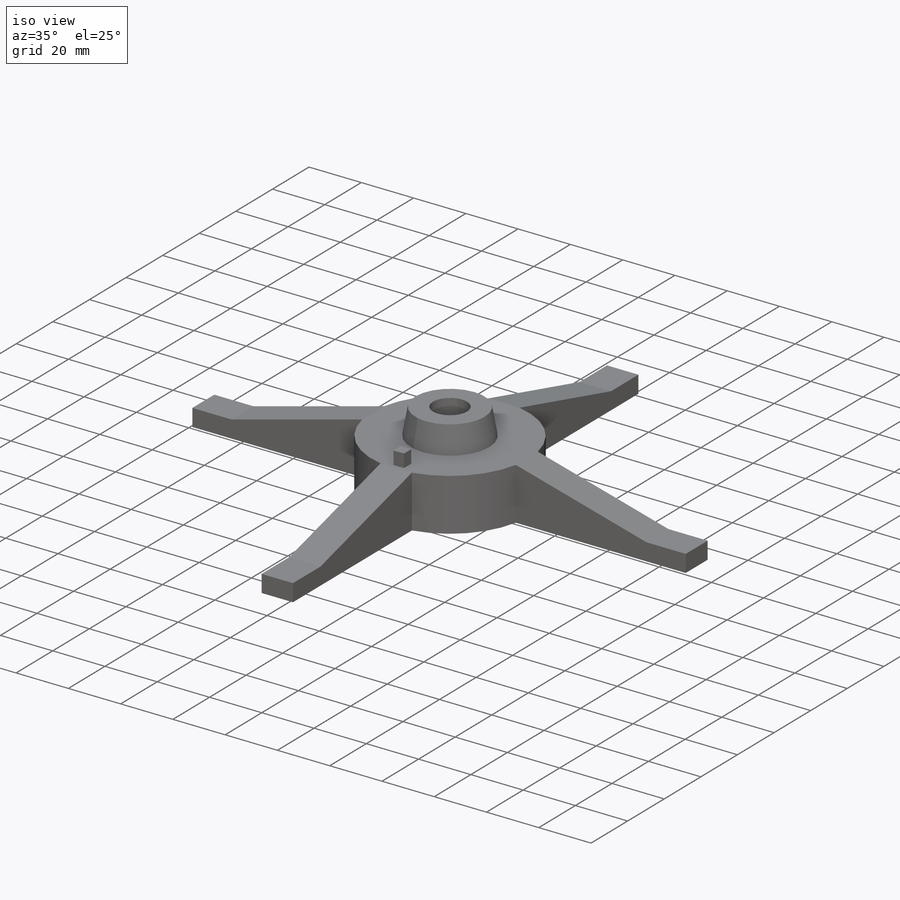
[diagram: iso view]
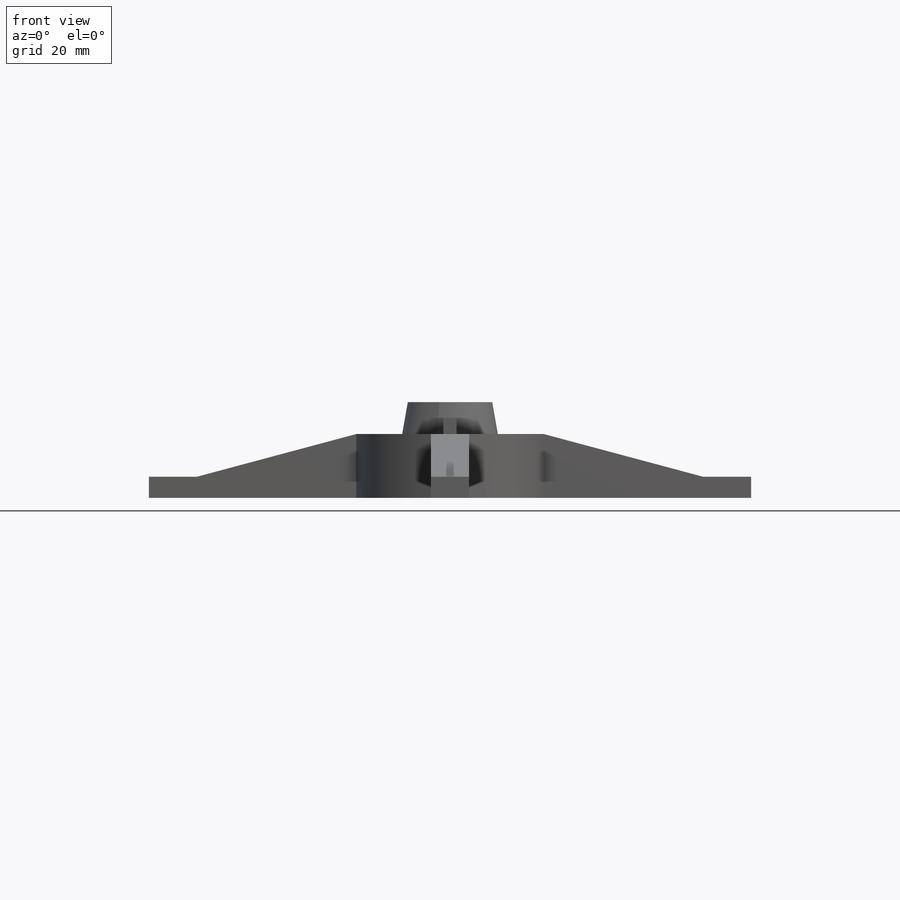
[diagram: front view]
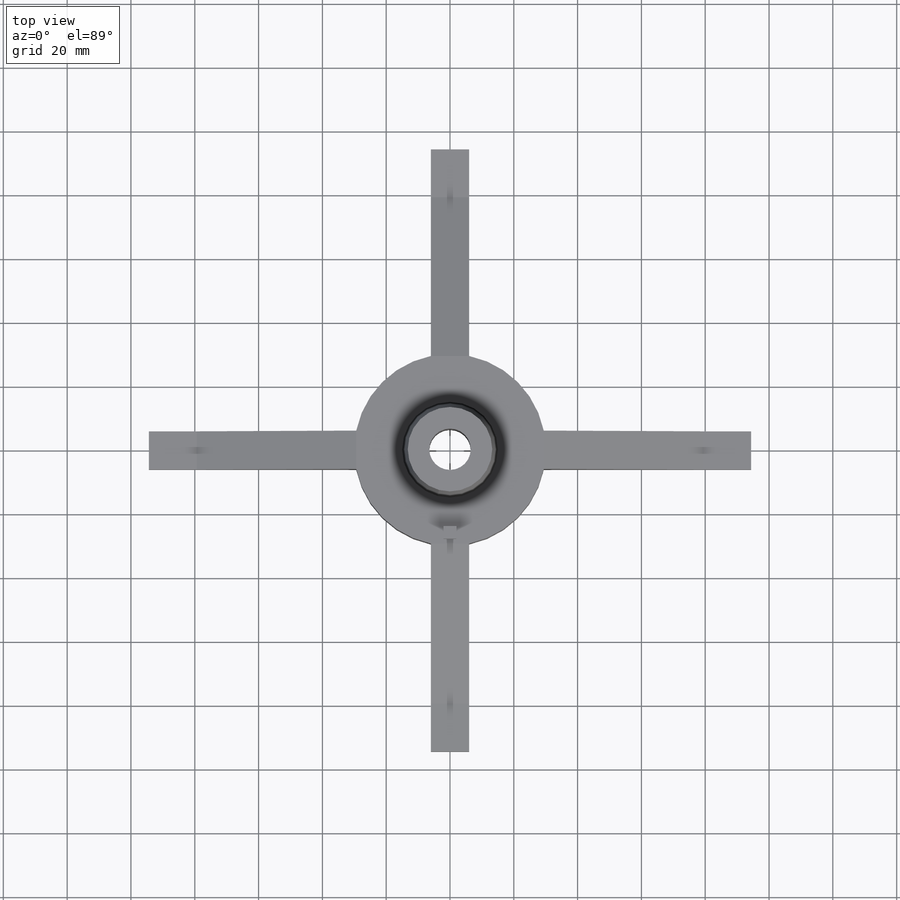
[diagram: top view]
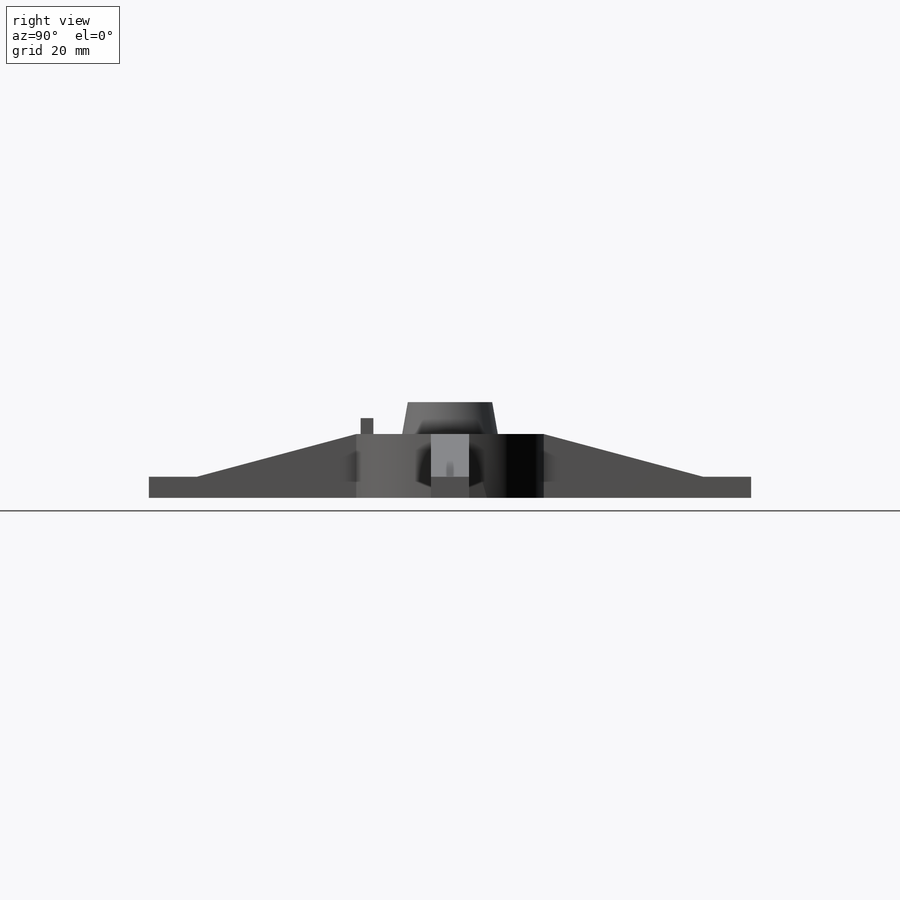
[diagram: right view]
SOLIDWORKS PART (.sldprt)
format: sldprt  version: not decoded by parser v0  size: 201,728 bytes
history: native  units: mm
features: sketch x6, extrude x4, cut_extrude x2, material x1, pattern_circular x1 (+11 scaffold rows collapsed)
feature tree (25):
  scaffold x11  (default folders/planes/origin — collapsed)
  material  "Alloy Steel"
  sketch  "Sketch1"  dims[D1=30.0mm D2=60.0mm D5=13.0mm D3=12.0mm D4=65.0mm D6=4.0mm D7=4.0mm]
  extrude  "Base"  Depth=20mm
  extrude  "Boss-Extrude1"  [1 undecoded]
  sketch  "Sketch1<8>"
  sketch  "Sketch2"  dims[c1.D1=15.0mm c1.D2=50.0mm c2.D2=~165.103587deg c3.D2=65.0mm c4.D2=15.0deg]
  cut_extrude  "Cut-Extrude1"  [1 undecoded]
  pattern_circular  "CirPattern1"  Count=4 Angle=360deg
  extrude  "Boss-Extrude2"  [1 undecoded]
  sketch  "Sketch1<10>"  dims[D1=10.0mm D3=10.0deg]
  cut_extrude  "Cut-Extrude2"  [1 undecoded]
  sketch  "Sketch1<11>"
  extrude  "Boss-Extrude3"  [1 undecoded]
  sketch  "Sketch1<12>"  dims[D1=25.0mm]
decode coverage: 6 of 13 modeling features carry decoded parameters
note: ~ marks probable driven/reference dimensions
note: 5 parameter values undecoded
summary: no parameter record found for 5 features
note: suppression state not decoded; provenance and decode notes live in map.json
